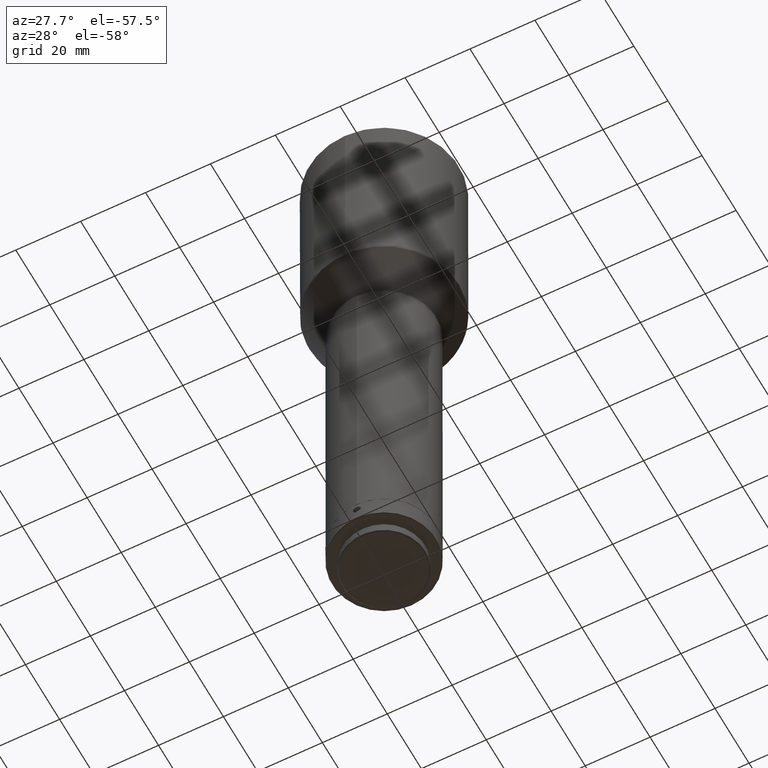
[diagram: clean part render]
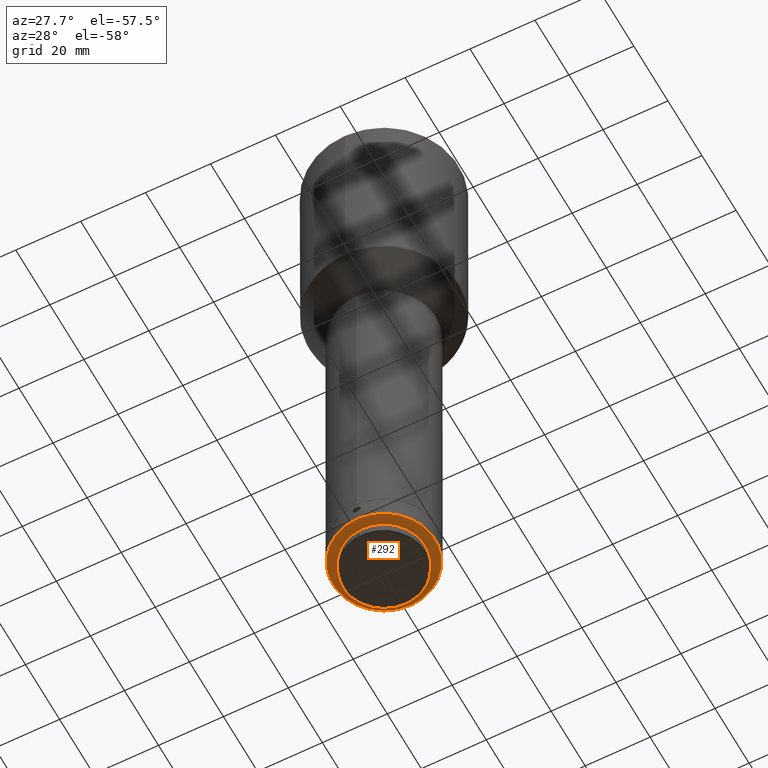
[diagram: same view with one face highlighted and labeled with its STEP entity id]
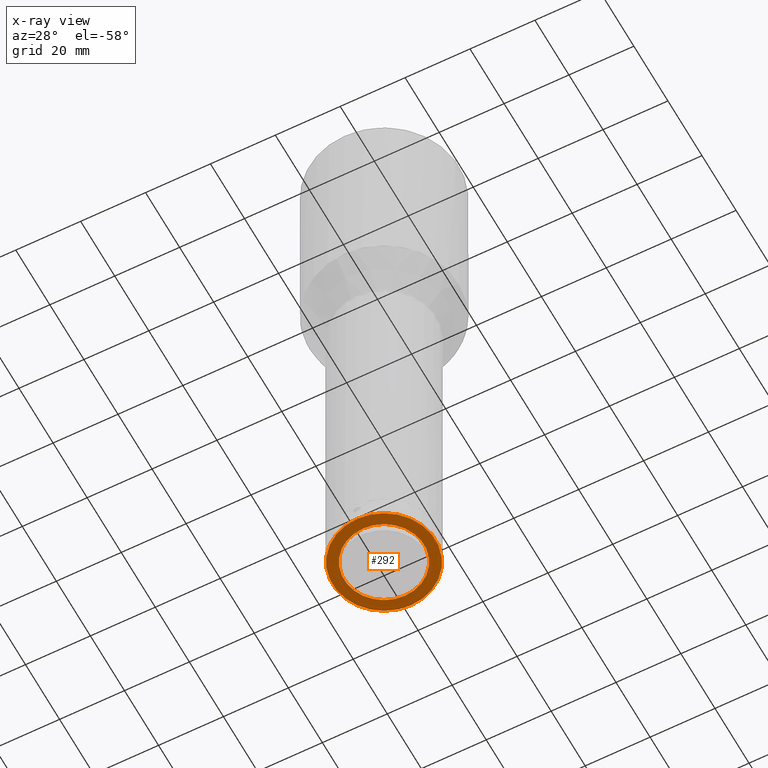
[diagram: x-ray of the same camera — body ghosted, the highlighted face saturated]
A machine part, auxiliary view. The second image highlights one B-rep face of the part: STEP entity #292.
The next image is the same camera in x-ray: the body ghosted, the highlighted face saturated — about 0% of this face is hidden behind the body in this view.
In plain terms, the highlighted planar face has unit normal (0, 0, 1).
Its self-contained STEP definition (entity closure, byte-faithful):
#130 = FACE_OUTER_BOUND ( 'NONE', #589, .T. ) ;
#137 = FACE_BOUND ( 'NONE', #620, .T. ) ;
#257 = DIRECTION ( 'NONE',  ( 0.000000000000000000, -1.000000000000000000, 0.000000000000000000 ) ) ;
#292 = ADVANCED_FACE ( 'NONE', ( #137, #130 ), #1023, .F. ) ;
#308 = DIRECTION ( 'NONE',  ( 0.000000000000000000, -1.000000000000000000, 2.334120334303136093E-17 ) ) ;
#314 = CIRCLE ( 'NONE', #901, 15.79999999999998828 ) ;
#424 = VERTEX_POINT ( 'NONE', #833 ) ;
#429 = CIRCLE ( 'NONE', #558, 12.29999999999998828 ) ;
#482 = EDGE_CURVE ( 'NONE', #705, #705, #314, .T. ) ;
#558 = AXIS2_PLACEMENT_3D ( 'NONE', #1019, #658, #596 ) ;
#589 = EDGE_LOOP ( 'NONE', ( #604 ) ) ;
#596 = DIRECTION ( 'NONE',  ( 0.000000000000000000, 1.000000000000000000, 0.000000000000000000 ) ) ;
#604 = ORIENTED_EDGE ( 'NONE', *, *, #482, .F. ) ;
#620 = EDGE_LOOP ( 'NONE', ( #782 ) ) ;
#622 = CARTESIAN_POINT ( 'NONE',  ( -1.734723475976806700E-15, -15.80000000000008775, -854.8036269999998922 ) ) ;
#639 = CARTESIAN_POINT ( 'NONE',  ( -1.597191537704939797E-16, 12.29999999999988169, -854.8036269999998922 ) ) ;
#646 = DIRECTION ( 'NONE',  ( -1.504632769052555861E-30, -3.469446951953646927E-15, 1.000000000000000000 ) ) ;
#658 = DIRECTION ( 'NONE',  ( 1.190632050506608759E-32, -2.334120334303136093E-17, -1.000000000000000000 ) ) ;
#705 = VERTEX_POINT ( 'NONE', #622 ) ;
#738 = AXIS2_PLACEMENT_3D ( 'NONE', #639, #884, #308 ) ;
#773 = EDGE_CURVE ( 'NONE', #424, #424, #429, .T. ) ;
#782 = ORIENTED_EDGE ( 'NONE', *, *, #773, .F. ) ;
#833 = CARTESIAN_POINT ( 'NONE',  ( -1.525293474059434976E-15, 12.29999999999988525, -854.8036269999998922 ) ) ;
#884 = DIRECTION ( 'NONE',  ( 1.834957453122970962E-32, 2.334120334303136093E-17, 1.000000000000000000 ) ) ;
#901 = AXIS2_PLACEMENT_3D ( 'NONE', #974, #646, #257 ) ;
#974 = CARTESIAN_POINT ( 'NONE',  ( -1.734723475976806700E-15, -1.014956331665537242E-13, -854.8036269999998922 ) ) ;
#1019 = CARTESIAN_POINT ( 'NONE',  ( -1.525293474059434976E-15, -1.021941907976125732E-13, -854.8036269999998922 ) ) ;
#1023 = PLANE ( 'NONE',  #738 ) ;